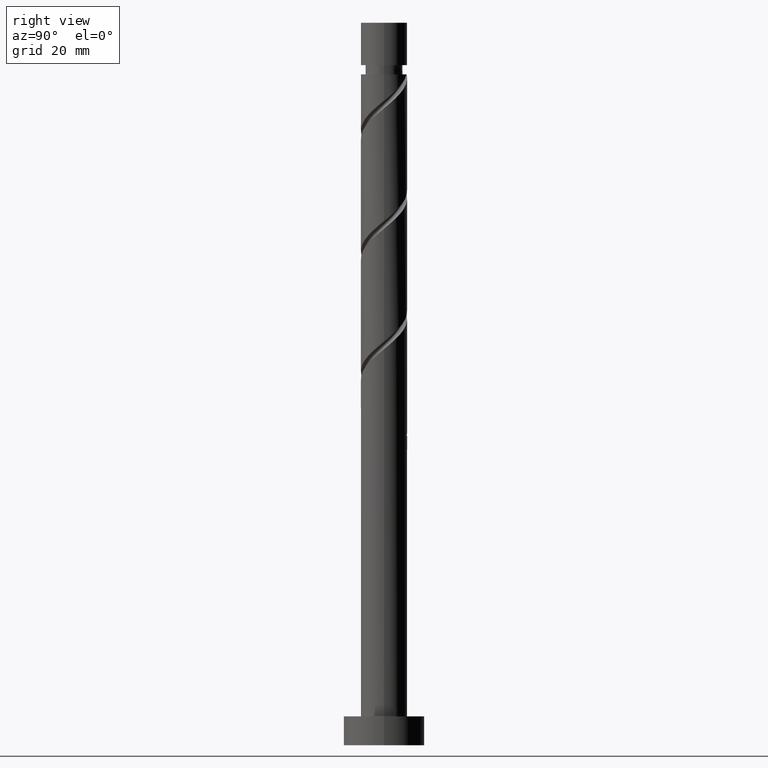
[diagram: clean part render]
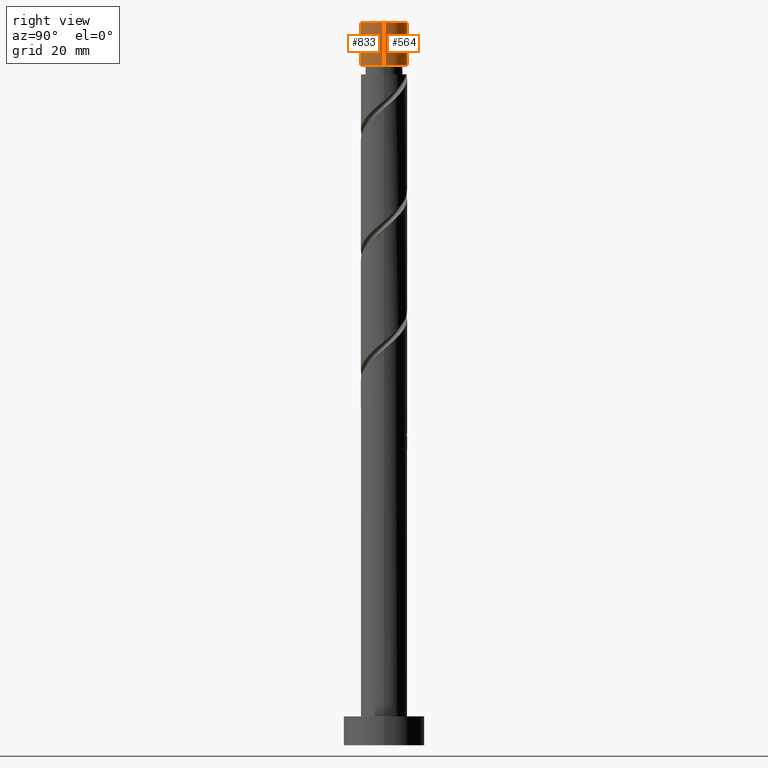
[diagram: same view with one multi-face feature highlighted, each face labeled with its STEP entity id]
A machine part, right view. The highlighted faces form ONE feature: a constant-radius fillet chain: 2 tangent blend faces with common blend radius 4 mm. The faces share edges in the B-rep.
Their STEP definitions:
[1] entity #564 (Cylinder):
#28 = CARTESIAN_POINT ( 'NONE',  ( -3.999999999999998224, 0.000000000000000000, 117.6734846791594720 ) ) ;
#80 = VERTEX_POINT ( 'NONE', #267 ) ;
#81 = EDGE_CURVE ( 'NONE', #752, #599, #1241, .T. ) ;
#141 = CARTESIAN_POINT ( 'NONE',  ( 0.000000000000000000, 0.000000000000000000, 117.6734846791594720 ) ) ;
#267 = CARTESIAN_POINT ( 'NONE',  ( 4.000000000000000000, 4.898587196589412829E-16, 125.0000000000000000 ) ) ;
#287 = EDGE_CURVE ( 'NONE', #80, #599, #545, .T. ) ;
#374 = VECTOR ( 'NONE', #1461, 1000.000000000000000 ) ;
#388 = EDGE_CURVE ( 'NONE', #700, #752, #927, .T. ) ;
#456 = CARTESIAN_POINT ( 'NONE',  ( 0.000000000000000000, 0.000000000000000000, 125.0000000000000000 ) ) ;
#467 = CIRCLE ( 'NONE', #898, 4.000000000000000000 ) ;
#468 = DIRECTION ( 'NONE',  ( -1.000000000000000000, 0.000000000000000000, 0.000000000000000000 ) ) ;
#488 = DIRECTION ( 'NONE',  ( -1.000000000000000000, 0.000000000000000000, 0.000000000000000000 ) ) ;
#545 = LINE ( 'NONE', #1559, #374 ) ;
#559 = CARTESIAN_POINT ( 'NONE',  ( 0.000000000000000000, 0.000000000000000000, 125.0000000000000000 ) ) ;
#561 = AXIS2_PLACEMENT_3D ( 'NONE', #456, #820, #468 ) ;
#564 = ADVANCED_FACE ( 'NONE', ( #839 ), #810, .T. ) ;
#599 = VERTEX_POINT ( 'NONE', #1080 ) ;
#610 = DIRECTION ( 'NONE',  ( -0.000000000000000000, -0.000000000000000000, -1.000000000000000000 ) ) ;
#700 = VERTEX_POINT ( 'NONE', #1534 ) ;
#701 = DIRECTION ( 'NONE',  ( -0.000000000000000000, -0.000000000000000000, -1.000000000000000000 ) ) ;
#752 = VERTEX_POINT ( 'NONE', #28 ) ;
#810 = CYLINDRICAL_SURFACE ( 'NONE', #561, 4.000000000000000000 ) ;
#820 = DIRECTION ( 'NONE',  ( -0.000000000000000000, -0.000000000000000000, -1.000000000000000000 ) ) ;
#839 = FACE_OUTER_BOUND ( 'NONE', #926, .T. ) ;
#898 = AXIS2_PLACEMENT_3D ( 'NONE', #559, #1082, #1327 ) ;
#926 = EDGE_LOOP ( 'NONE', ( #974, #1263, #1361, #1416 ) ) ;
#927 = LINE ( 'NONE', #1216, #1273 ) ;
#974 = ORIENTED_EDGE ( 'NONE', *, *, #984, .F. ) ;
#977 = AXIS2_PLACEMENT_3D ( 'NONE', #141, #610, #488 ) ;
#984 = EDGE_CURVE ( 'NONE', #80, #700, #467, .T. ) ;
#1080 = CARTESIAN_POINT ( 'NONE',  ( 3.999999999999998224, 4.898587196589411843E-16, 117.6734846791594720 ) ) ;
#1082 = DIRECTION ( 'NONE',  ( 0.000000000000000000, 0.000000000000000000, 1.000000000000000000 ) ) ;
#1216 = CARTESIAN_POINT ( 'NONE',  ( -4.000000000000000000, 0.000000000000000000, 125.0000000000000000 ) ) ;
#1241 = CIRCLE ( 'NONE', #977, 3.999999999999998224 ) ;
#1263 = ORIENTED_EDGE ( 'NONE', *, *, #287, .T. ) ;
#1273 = VECTOR ( 'NONE', #701, 1000.000000000000000 ) ;
#1327 = DIRECTION ( 'NONE',  ( 1.000000000000000000, 0.000000000000000000, 0.000000000000000000 ) ) ;
#1361 = ORIENTED_EDGE ( 'NONE', *, *, #81, .F. ) ;
#1416 = ORIENTED_EDGE ( 'NONE', *, *, #388, .F. ) ;
#1461 = DIRECTION ( 'NONE',  ( -0.000000000000000000, -0.000000000000000000, -1.000000000000000000 ) ) ;
#1534 = CARTESIAN_POINT ( 'NONE',  ( -4.000000000000000000, 0.000000000000000000, 125.0000000000000000 ) ) ;
#1559 = CARTESIAN_POINT ( 'NONE',  ( 4.000000000000000000, 4.898587196589412829E-16, 125.0000000000000000 ) ) ;
[2] entity #833 (Cylinder):
#12 = EDGE_CURVE ( 'NONE', #599, #752, #1324, .T. ) ;
#24 = DIRECTION ( 'NONE',  ( -1.000000000000000000, 0.000000000000000000, 0.000000000000000000 ) ) ;
#28 = CARTESIAN_POINT ( 'NONE',  ( -3.999999999999998224, 0.000000000000000000, 117.6734846791594720 ) ) ;
#80 = VERTEX_POINT ( 'NONE', #267 ) ;
#232 = ORIENTED_EDGE ( 'NONE', *, *, #1303, .F. ) ;
#267 = CARTESIAN_POINT ( 'NONE',  ( 4.000000000000000000, 4.898587196589412829E-16, 125.0000000000000000 ) ) ;
#286 = EDGE_LOOP ( 'NONE', ( #1138, #232, #1287, #366 ) ) ;
#287 = EDGE_CURVE ( 'NONE', #80, #599, #545, .T. ) ;
#338 = DIRECTION ( 'NONE',  ( 1.000000000000000000, 0.000000000000000000, 0.000000000000000000 ) ) ;
#366 = ORIENTED_EDGE ( 'NONE', *, *, #12, .F. ) ;
#374 = VECTOR ( 'NONE', #1461, 1000.000000000000000 ) ;
#388 = EDGE_CURVE ( 'NONE', #700, #752, #927, .T. ) ;
#495 = DIRECTION ( 'NONE',  ( -1.000000000000000000, 0.000000000000000000, 0.000000000000000000 ) ) ;
#545 = LINE ( 'NONE', #1559, #374 ) ;
#599 = VERTEX_POINT ( 'NONE', #1080 ) ;
#605 = AXIS2_PLACEMENT_3D ( 'NONE', #1242, #859, #24 ) ;
#619 = DIRECTION ( 'NONE',  ( -0.000000000000000000, -0.000000000000000000, -1.000000000000000000 ) ) ;
#700 = VERTEX_POINT ( 'NONE', #1534 ) ;
#701 = DIRECTION ( 'NONE',  ( -0.000000000000000000, -0.000000000000000000, -1.000000000000000000 ) ) ;
#730 = FACE_OUTER_BOUND ( 'NONE', #286, .T. ) ;
#752 = VERTEX_POINT ( 'NONE', #28 ) ;
#833 = ADVANCED_FACE ( 'NONE', ( #730 ), #875, .T. ) ;
#859 = DIRECTION ( 'NONE',  ( -0.000000000000000000, -0.000000000000000000, -1.000000000000000000 ) ) ;
#875 = CYLINDRICAL_SURFACE ( 'NONE', #1045, 4.000000000000000000 ) ;
#927 = LINE ( 'NONE', #1216, #1273 ) ;
#971 = DIRECTION ( 'NONE',  ( 0.000000000000000000, 0.000000000000000000, 1.000000000000000000 ) ) ;
#1045 = AXIS2_PLACEMENT_3D ( 'NONE', #1136, #619, #495 ) ;
#1080 = CARTESIAN_POINT ( 'NONE',  ( 3.999999999999998224, 4.898587196589411843E-16, 117.6734846791594720 ) ) ;
#1112 = CARTESIAN_POINT ( 'NONE',  ( 0.000000000000000000, 0.000000000000000000, 125.0000000000000000 ) ) ;
#1136 = CARTESIAN_POINT ( 'NONE',  ( 0.000000000000000000, 0.000000000000000000, 125.0000000000000000 ) ) ;
#1138 = ORIENTED_EDGE ( 'NONE', *, *, #287, .F. ) ;
#1216 = CARTESIAN_POINT ( 'NONE',  ( -4.000000000000000000, 0.000000000000000000, 125.0000000000000000 ) ) ;
#1227 = CIRCLE ( 'NONE', #1334, 4.000000000000000000 ) ;
#1242 = CARTESIAN_POINT ( 'NONE',  ( 0.000000000000000000, 0.000000000000000000, 117.6734846791594720 ) ) ;
#1273 = VECTOR ( 'NONE', #701, 1000.000000000000000 ) ;
#1287 = ORIENTED_EDGE ( 'NONE', *, *, #388, .T. ) ;
#1303 = EDGE_CURVE ( 'NONE', #700, #80, #1227, .T. ) ;
#1324 = CIRCLE ( 'NONE', #605, 3.999999999999998224 ) ;
#1334 = AXIS2_PLACEMENT_3D ( 'NONE', #1112, #971, #338 ) ;
#1461 = DIRECTION ( 'NONE',  ( -0.000000000000000000, -0.000000000000000000, -1.000000000000000000 ) ) ;
#1534 = CARTESIAN_POINT ( 'NONE',  ( -4.000000000000000000, 0.000000000000000000, 125.0000000000000000 ) ) ;
#1559 = CARTESIAN_POINT ( 'NONE',  ( 4.000000000000000000, 4.898587196589412829E-16, 125.0000000000000000 ) ) ;